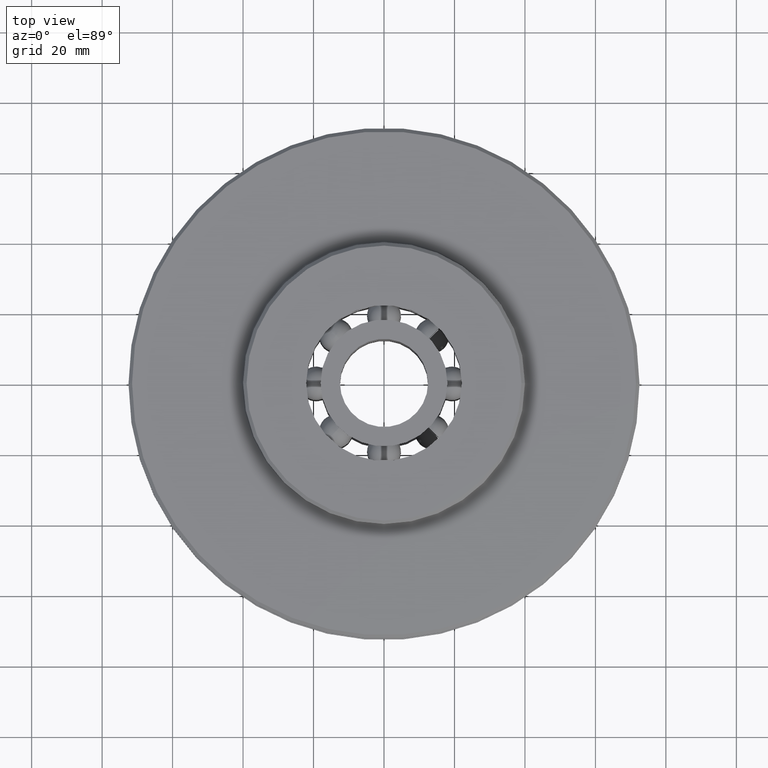
[diagram: clean part render]
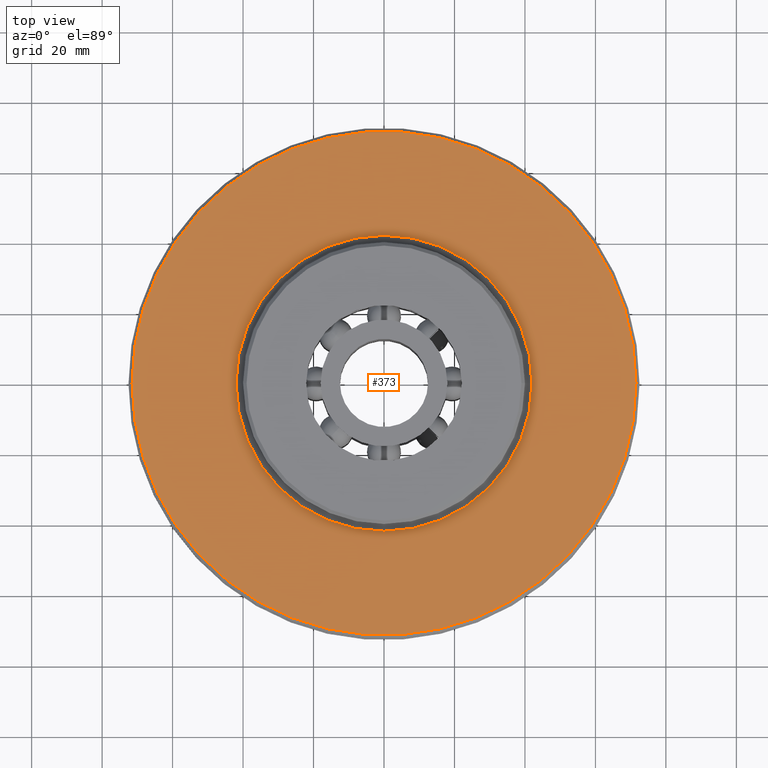
[diagram: same view with one face highlighted and labeled with its STEP entity id]
A machine part, top view. The second image highlights one B-rep face of the part: STEP entity #373.
In plain terms, the highlighted planar face has unit normal (0, 0, 1).
Its self-contained STEP definition (entity closure, byte-faithful):
#373=ADVANCED_FACE('',(#774,#775),#776,.T.);
#774=FACE_BOUND('',#1184,.T.);
#775=FACE_OUTER_BOUND('',#1185,.T.);
#776=PLANE('',#1186);
#1184=EDGE_LOOP('',(#2443,#2444));
#1185=EDGE_LOOP('',(#2445,#2446));
#1186=AXIS2_PLACEMENT_3D('',#2447,#2448,#2449);
#2443=ORIENTED_EDGE('',*,*,#3078,.F.);
#2444=ORIENTED_EDGE('',*,*,#2697,.F.);
#2445=ORIENTED_EDGE('',*,*,#2704,.T.);
#2446=ORIENTED_EDGE('',*,*,#3076,.T.);
#2447=CARTESIAN_POINT('',(56.75,0.0,12.0));
#2448=DIRECTION('',(0.0,0.0,1.0));
#2449=DIRECTION('',(1.0,0.0,0.0));
#2697=EDGE_CURVE('',#3327,#3329,#3330,.T.);
#2704=EDGE_CURVE('',#3335,#3339,#3341,.T.);
#3076=EDGE_CURVE('',#3339,#3335,#3893,.T.);
#3078=EDGE_CURVE('',#3329,#3327,#3895,.T.);
#3327=VERTEX_POINT('',#4864);
#3329=VERTEX_POINT('',#4866);
#3330=CIRCLE('',#4867,42.0);
#3335=VERTEX_POINT('',#4872);
#3339=VERTEX_POINT('',#4877);
#3341=CIRCLE('',#4880,71.5);
#3893=CIRCLE('',#7812,71.5);
#3895=CIRCLE('',#7814,42.0);
#4864=CARTESIAN_POINT('',(-42.0,5.14351655641888E-015,12.0));
#4866=CARTESIAN_POINT('',(42.0,0.0,12.0));
#4867=AXIS2_PLACEMENT_3D('',#8025,#8026,#8027);
#4872=CARTESIAN_POINT('',(71.5,0.0,12.0));
#4877=CARTESIAN_POINT('',(-71.5,8.75622461390357E-015,12.0));
#4880=AXIS2_PLACEMENT_3D('',#8039,#8040,#8041);
#7812=AXIS2_PLACEMENT_3D('',#8424,#8425,#8426);
#7814=AXIS2_PLACEMENT_3D('',#8427,#8428,#8429);
#8025=CARTESIAN_POINT('',(0.0,0.0,12.0));
#8026=DIRECTION('',(0.0,0.0,1.0));
#8027=DIRECTION('',(1.0,0.0,0.0));
#8039=CARTESIAN_POINT('',(0.0,0.0,12.0));
#8040=DIRECTION('',(0.0,0.0,1.0));
#8041=DIRECTION('',(1.0,0.0,0.0));
#8424=CARTESIAN_POINT('',(0.0,0.0,12.0));
#8425=DIRECTION('',(0.0,0.0,1.0));
#8426=DIRECTION('',(1.0,0.0,0.0));
#8427=CARTESIAN_POINT('',(0.0,0.0,12.0));
#8428=DIRECTION('',(0.0,0.0,1.0));
#8429=DIRECTION('',(1.0,0.0,0.0));